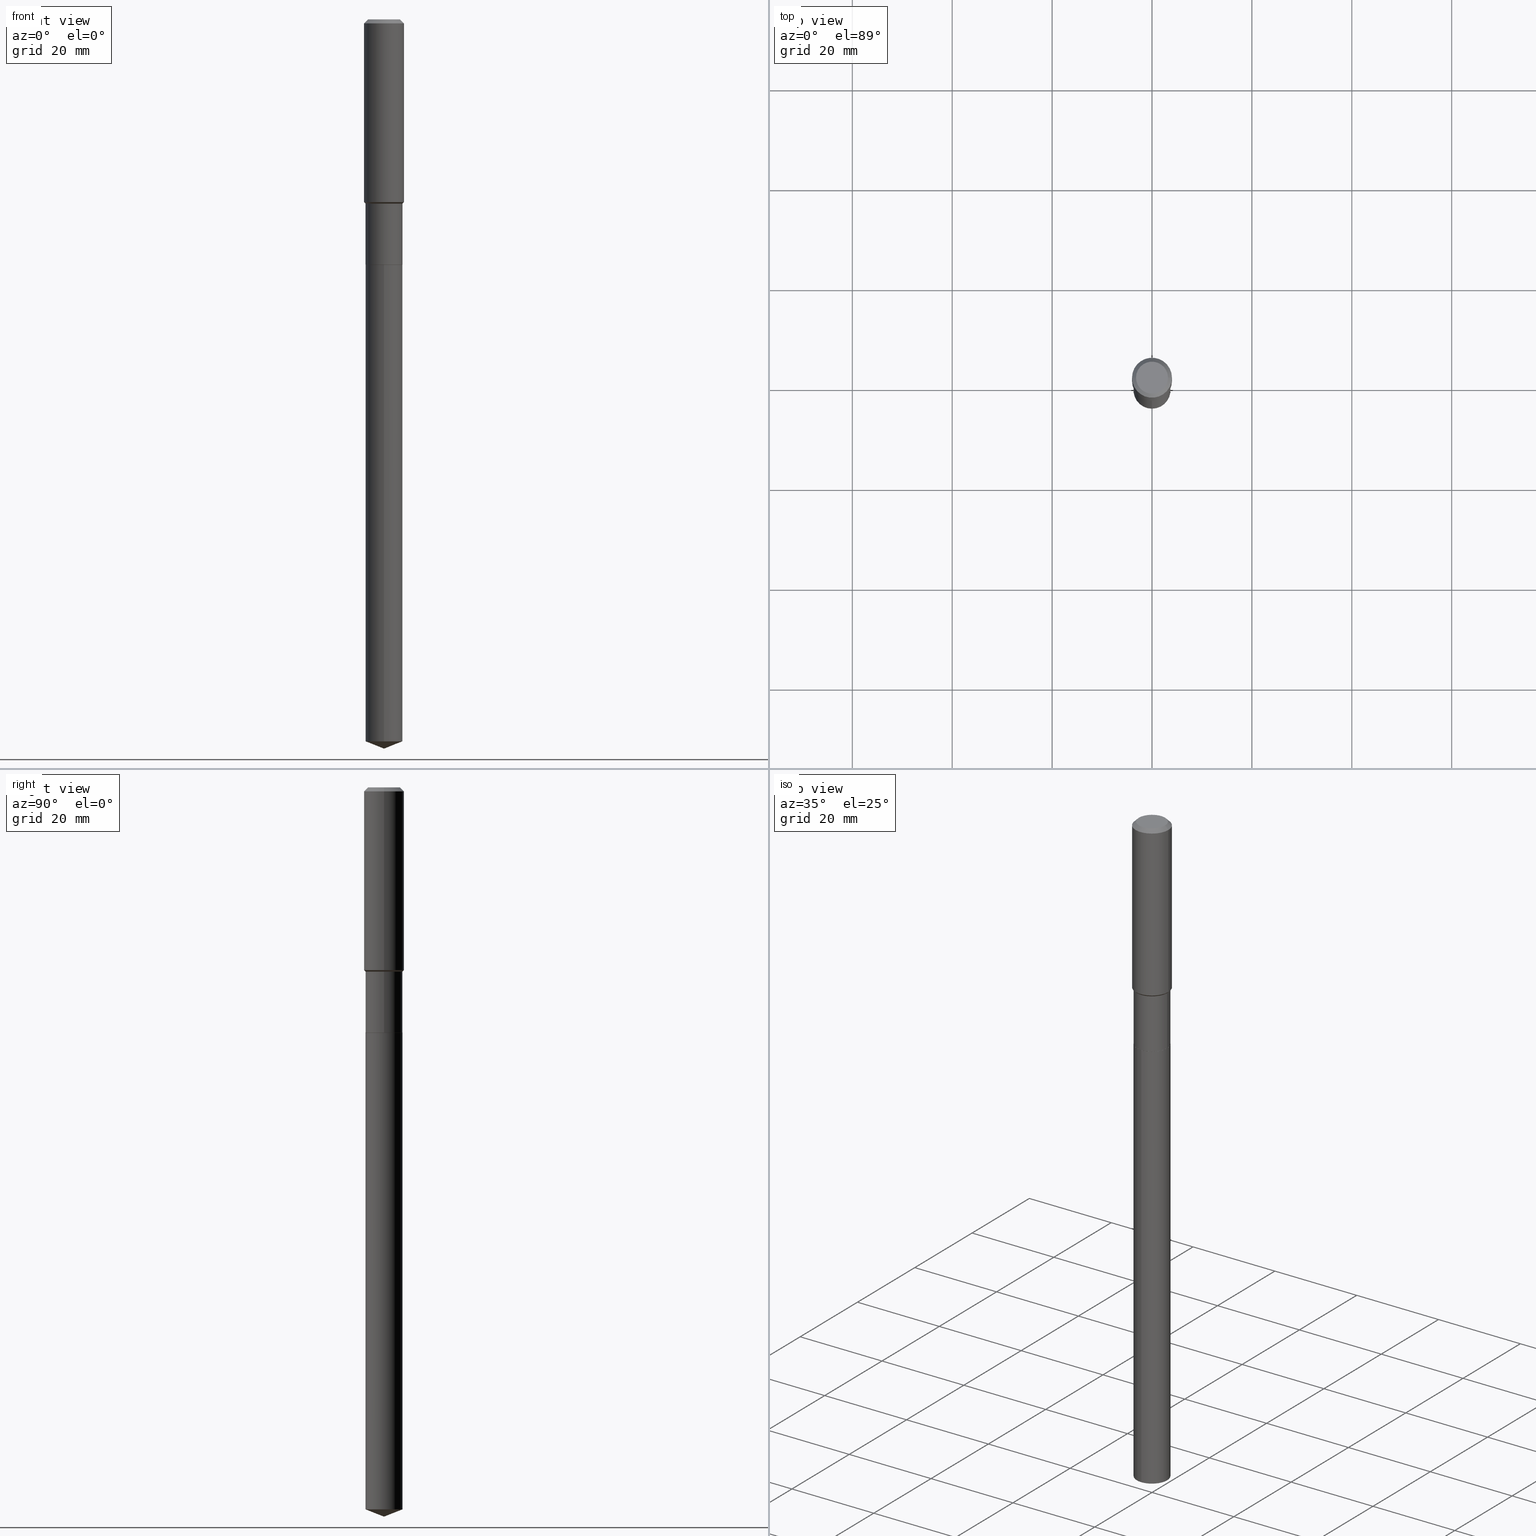
[diagram: canonical four-view strip — front | top / right | iso, engineering-drawing reading convention]
A machine part, canonical four-view strip (front | top / right | iso — engineering-drawing reading convention). The complete STEP part file that produces these views, byte-faithful:
ISO-10303-21;
HEADER;
FILE_DESCRIPTION (( 'STEP AP203' ),
    '1' );
FILE_NAME ('66753.STEP',
    '2024-04-25T05:20:40',
    ( '' ),
    ( '' ),
    'SwSTEP 2.0',
    'SolidWorks 2023',
    '' );
FILE_SCHEMA (( 'CONFIG_CONTROL_DESIGN' ));
ENDSEC;

DATA;
#1 = EDGE_CURVE ( 'NONE', #318, #283, #316, .T. ) ;
#2 = CARTESIAN_POINT ( 'NONE',  ( -0.1451500000000000012, -5.715031419853903591E-15, -1.932999999999999829 ) ) ;
#3 = ORIENTED_EDGE ( 'NONE', *, *, #90, .F. ) ;
#4 = DIRECTION ( 'NONE',  ( -2.445468806185136877E-29, 3.491481338843145188E-15, 1.000000000000000000 ) ) ;
#5 = AXIS2_PLACEMENT_3D ( 'NONE', #371, #373, #155 ) ;
#6 = DIRECTION ( 'NONE',  ( -2.438088387897960049E-29, 3.491481338843145188E-15, 1.000000000000000000 ) ) ;
#7 = EDGE_CURVE ( 'NONE', #409, #174, #345, .T. ) ;
#8 = APPLICATION_CONTEXT ( 'configuration controlled 3d designs of mechanical parts and assemblies' ) ;
#9 = PLANE ( 'NONE',  #307 ) ;
#10 = CARTESIAN_POINT ( 'NONE',  ( -1.017068514004865822E-15, -0.1456500000000199302, -5.690626939226684833 ) ) ;
#11 = CONICAL_SURFACE ( 'NONE', #284, 0.1451500000000000012, 0.7853981633975507526 ) ;
#12 = CLOSED_SHELL ( 'NONE', ( #227, #433, #67, #483, #308, #333, #13, #339, #326, #72, #265, #440 ) ) ;
#13 = ADVANCED_FACE ( 'NONE', ( #400 ), #119, .T. ) ;
#14 = PERSON_AND_ORGANIZATION ( #449, #479 ) ;
#15 = VERTEX_POINT ( 'NONE', #366 ) ;
#16 = DIRECTION ( 'NONE',  ( -2.445468806185136597E-29, 3.491481338843145583E-15, 1.000000000000000000 ) ) ;
#17 = PERSON_AND_ORGANIZATION_ROLE ( 'design_supplier' ) ;
#18 = FACE_OUTER_BOUND ( 'NONE', #352, .T. ) ;
#19 = CIRCLE ( 'NONE', #432, 0.1575000000000001676 ) ;
#20 = DIRECTION ( 'NONE',  ( -2.445505692520665496E-29, 3.491428515511228693E-15, 1.000000000000000000 ) ) ;
#21 = EDGE_LOOP ( 'NONE', ( #372, #447 ) ) ;
#22 = ADVANCED_FACE ( 'NONE', ( #176 ), #178, .T. ) ;
#23 = DIRECTION ( 'NONE',  ( -6.982962677686265922E-15, -1.000000000000000000, 3.751250248766581581E-15 ) ) ;
#24 = LINE ( 'NONE', #134, #223 ) ;
#25 = DIRECTION ( 'NONE',  ( -2.445468806185136597E-29, 3.491481338843145583E-15, 1.000000000000000000 ) ) ;
#26 = CARTESIAN_POINT ( 'NONE',  ( -0.1451500000000000012, -5.717680647028014003E-15, -1.932999999999999829 ) ) ;
#27 = DATE_AND_TIME ( #93, #343 ) ;
#28 =( NAMED_UNIT ( * ) PLANE_ANGLE_UNIT ( ) SI_UNIT ( $, .RADIAN. ) );
#29 = EDGE_CURVE ( 'NONE', #104, #142, #337, .T. ) ;
#30 = CARTESIAN_POINT ( 'NONE',  ( 0.1456500000000000017, -7.764356201319383773E-15, -1.932499999999999885 ) ) ;
#31 = DATE_AND_TIME ( #237, #112 ) ;
#32 = EDGE_LOOP ( 'NONE', ( #58, #123, #467, #208 ) ) ;
#33 = DIRECTION ( 'NONE',  ( 1.000000000000000000, -6.982962677686265922E-15, 0.000000000000000000 ) ) ;
#34 = PRODUCT ( '66753', '66753', '', ( #66 ) ) ;
#35 = CARTESIAN_POINT ( 'NONE',  ( -0.1456499999999999462, -4.874077523223553244E-15, -1.452299999999999702 ) ) ;
#36 = PRODUCT_DEFINITION_FORMATION_WITH_SPECIFIED_SOURCE ( 'ANY', '', #34, .NOT_KNOWN. ) ;
#37 = LINE ( 'NONE', #26, #443 ) ;
#38 = CC_DESIGN_PERSON_AND_ORGANIZATION_ASSIGNMENT ( #129, #17, ( #36 ) ) ;
#39 = AXIS2_PLACEMENT_3D ( 'NONE', #78, #428, #379 ) ;
#40 = DIRECTION ( 'NONE',  ( 1.000000000000000000, -6.982962677686265922E-15, 0.000000000000000000 ) ) ;
#41 = DIRECTION ( 'NONE',  ( -2.445468806185136597E-29, 3.491481338843145583E-15, 1.000000000000000000 ) ) ;
#42 = SHAPE_DEFINITION_REPRESENTATION ( #77, #234 ) ;
#43 = PRODUCT_DEFINITION ( 'UNKNOWN', '', #36, #310 ) ;
#44 = LINE ( 'NONE', #302, #295 ) ;
#45 = VECTOR ( 'NONE', #4, 39.37007874015748143 ) ;
#46 = CIRCLE ( 'NONE', #314, 0.1451500000000000012 ) ;
#47 = FACE_OUTER_BOUND ( 'NONE', #402, .T. ) ;
#48 = DIRECTION ( 'NONE',  ( 0.7071067811865451302, -7.319954787623248157E-15, -0.7071067811865499042 ) ) ;
#49 = LINE ( 'NONE', #275, #84 ) ;
#50 = EDGE_CURVE ( 'NONE', #272, #311, #37, .T. ) ;
#51 = AXIS2_PLACEMENT_3D ( 'NONE', #322, #320, #294 ) ;
#52 = EDGE_LOOP ( 'NONE', ( #257, #62, #109 ) ) ;
#53 = DIRECTION ( 'NONE',  ( -2.445468806185136597E-29, 3.491481338843145583E-15, 1.000000000000000000 ) ) ;
#54 = ORIENTED_EDGE ( 'NONE', *, *, #348, .F. ) ;
#55 = DIRECTION ( 'NONE',  ( -2.445468806185136597E-29, 3.491481338843145583E-15, 1.000000000000000000 ) ) ;
#56 = LINE ( 'NONE', #205, #95 ) ;
#57 = EDGE_CURVE ( 'NONE', #89, #142, #141, .T. ) ;
#58 = ORIENTED_EDGE ( 'NONE', *, *, #147, .F. ) ;
#59 = FACE_OUTER_BOUND ( 'NONE', #300, .T. ) ;
#60 = ORIENTED_EDGE ( 'NONE', *, *, #451, .F. ) ;
#61 = DATE_AND_TIME ( #395, #154 ) ;
#62 = ORIENTED_EDGE ( 'NONE', *, *, #87, .T. ) ;
#63 = ORIENTED_EDGE ( 'NONE', *, *, #201, .F. ) ;
#64 = PERSON_AND_ORGANIZATION ( #449, #479 ) ;
#65 = FACE_OUTER_BOUND ( 'NONE', #471, .T. ) ;
#66 = MECHANICAL_CONTEXT ( 'NONE', #185, 'mechanical' ) ;
#67 = ADVANCED_FACE ( 'NONE', ( #107 ), #323, .T. ) ;
#68 = DIRECTION ( 'NONE',  ( 1.000000000000000000, -6.982962677686267499E-15, 4.876176775795936353E-29 ) ) ;
#69 = CARTESIAN_POINT ( 'NONE',  ( -1.017068514004957330E-15, -0.1456500000000067463, -1.932999999999999385 ) ) ;
#70 =( NAMED_UNIT ( * ) SI_UNIT ( $, .STERADIAN. ) SOLID_ANGLE_UNIT ( ) );
#71 = DIRECTION ( 'NONE',  ( -1.000000000000000000, 6.982962677686265922E-15, -4.876176775795935793E-29 ) ) ;
#72 = ADVANCED_FACE ( 'NONE', ( #65 ), #103, .F. ) ;
#73 = EDGE_LOOP ( 'NONE', ( #356, #424, #397, #288 ) ) ;
#74 = MANIFOLD_SOLID_BREP ( 'Body-Move/Copy2[1]', #353 ) ;
#75 = CIRCLE ( 'NONE', #286, 0.1575000000000000011 ) ;
#76 = ORIENTED_EDGE ( 'NONE', *, *, #243, .F. ) ;
#77 = PRODUCT_DEFINITION_SHAPE ( 'NONE', 'NONE',  #43 ) ;
#78 = CARTESIAN_POINT ( 'NONE',  ( 7.703226739483228723E-31, -1.099816621735597661E-16, -0.03150000000000019451 ) ) ;
#79 = CARTESIAN_POINT ( 'NONE',  ( 0.1575000000000000844, -1.099816621735587677E-15, 7.679978421878603638E-30 ) ) ;
#80 = MANIFOLD_SOLID_BREP ( 'Body-Move/Copy2[2]', #12 ) ;
#81 = DIRECTION ( 'NONE',  ( 1.000000000000000000, -6.982962677686265922E-15, 0.000000000000000000 ) ) ;
#82 = EDGE_CURVE ( 'NONE', #311, #89, #125, .T. ) ;
#83 = DIRECTION ( 'NONE',  ( 1.000000000000000000, -6.982962677686267499E-15, 0.000000000000000000 ) ) ;
#84 = VECTOR ( 'NONE', #425, 39.37007874015748143 ) ;
#85 = CARTESIAN_POINT ( 'NONE',  ( 0.1456499999999999462, -6.087746862406903903E-15, -1.452299999999999702 ) ) ;
#86 = DIRECTION ( 'NONE',  ( 1.000000000000000000, -6.982962677686265922E-15, 4.876176775795935232E-29 ) ) ;
#87 = EDGE_CURVE ( 'NONE', #290, #174, #334, .T. ) ;
#88 = ORIENTED_EDGE ( 'NONE', *, *, #115, .F. ) ;
#89 = VERTEX_POINT ( 'NONE', #30 ) ;
#90 = EDGE_CURVE ( 'NONE', #174, #203, #360, .T. ) ;
#91 = LINE ( 'NONE', #240, #376 ) ;
#92 = ORIENTED_EDGE ( 'NONE', *, *, #195, .T. ) ;
#93 = CALENDAR_DATE ( 2024, 25, 4 ) ;
#94 = APPROVAL_PERSON_ORGANIZATION ( #189, #416, #250 ) ;
#95 = VECTOR ( 'NONE', #172, 39.37007874015748143 ) ;
#96 = VERTEX_POINT ( 'NONE', #152 ) ;
#97 = DIRECTION ( 'NONE',  ( 1.000000000000000000, 0.000000000000000000, 0.000000000000000000 ) ) ;
#98 = CARTESIAN_POINT ( 'NONE',  ( -9.439721640706201686E-47, 1.347742071746726764E-32, 3.860086710912459732E-18 ) ) ;
#99 = PRODUCT_RELATED_PRODUCT_CATEGORY ( 'detail', '', ( #34 ) ) ;
#100 = CARTESIAN_POINT ( 'NONE',  ( 4.727091202355868625E-29, -6.749033427983799432E-15, -1.932999999999999829 ) ) ;
#101 = CARTESIAN_POINT ( 'NONE',  ( 0.000000000000000000, 0.000000000000000000, 0.000000000000000000 ) ) ;
#102 = ORIENTED_EDGE ( 'NONE', *, *, #87, .F. ) ;
#103 = PLANE ( 'NONE',  #224 ) ;
#104 = VERTEX_POINT ( 'NONE', #35 ) ;
#105 = LENGTH_MEASURE_WITH_UNIT ( LENGTH_MEASURE( 0.02539999999999999897 ), #445 );
#106 = EDGE_CURVE ( 'NONE', #174, #409, #477, .T. ) ;
#107 = FACE_OUTER_BOUND ( 'NONE', #249, .T. ) ;
#108 = ORIENTED_EDGE ( 'NONE', *, *, #183, .T. ) ;
#109 = ORIENTED_EDGE ( 'NONE', *, *, #7, .F. ) ;
#110 = AXIS2_PLACEMENT_3D ( 'NONE', #338, #335, #157 ) ;
#111 = CARTESIAN_POINT ( 'NONE',  ( 0.1575000000000001676, -6.129120916272196299E-15, -1.440449999999999564 ) ) ;
#112 = LOCAL_TIME ( 1, 20, 40.00000000000000000, #158 ) ;
#113 = CARTESIAN_POINT ( 'NONE',  ( 3.551554347222673607E-29, -5.070678348401899637E-15, -1.452299999999999702 ) ) ;
#114 = APPROVAL_DATE_TIME ( #31, #365 ) ;
#115 = EDGE_CURVE ( 'NONE', #318, #446, #258, .T. ) ;
#116 = PLANE ( 'NONE',  #171 ) ;
#117 = CARTESIAN_POINT ( 'NONE',  ( 3.522575541869379032E-29, -5.029304294536608030E-15, -1.440449999999999564 ) ) ;
#118 = CC_DESIGN_APPROVAL ( #190, ( #336 ) ) ;
#119 = CONICAL_SURFACE ( 'NONE', #423, 0.1456499999999999462, 0.7853981633974554954 ) ;
#120 = AXIS2_PLACEMENT_3D ( 'NONE', #422, #53, #380 ) ;
#121 = CYLINDRICAL_SURFACE ( 'NONE', #381, 0.1456500000000000017 ) ;
#122 = FACE_OUTER_BOUND ( 'NONE', #319, .T. ) ;
#123 = ORIENTED_EDGE ( 'NONE', *, *, #82, .T. ) ;
#124 = CC_DESIGN_SECURITY_CLASSIFICATION ( #336, ( #36 ) ) ;
#125 = CIRCLE ( 'NONE', #198, 0.1456500000000000017 ) ;
#126 = DIRECTION ( 'NONE',  ( -2.445505692520665496E-29, 3.491428515511228693E-15, 1.000000000000000000 ) ) ;
#127 = ORIENTED_EDGE ( 'NONE', *, *, #209, .F. ) ;
#128 = ORIENTED_EDGE ( 'NONE', *, *, #50, .F. ) ;
#129 = PERSON_AND_ORGANIZATION ( #449, #479 ) ;
#130 = CARTESIAN_POINT ( 'NONE',  ( 3.522575541869379032E-29, -5.029304294536608030E-15, -1.440449999999999564 ) ) ;
#131 = ORIENTED_EDGE ( 'NONE', *, *, #315, .F. ) ;
#132 = PERSON_AND_ORGANIZATION ( #449, #479 ) ;
#133 = DIRECTION ( 'NONE',  ( 0.000000000000000000, 0.000000000000000000, 1.000000000000000000 ) ) ;
#134 = CARTESIAN_POINT ( 'NONE',  ( 1.034905494634633067E-15, 0.1456499999999932571, -1.933000000000000496 ) ) ;
#135 = ORIENTED_EDGE ( 'NONE', *, *, #358, .T. ) ;
#136 = CIRCLE ( 'NONE', #110, 0.1456500000000000017 ) ;
#137 = APPROVAL_DATE_TIME ( #27, #416 ) ;
#138 = APPLICATION_PROTOCOL_DEFINITION ( 'international standard', 'config_control_design', 1994, #185 ) ;
#139 = EDGE_CURVE ( 'NONE', #283, #355, #259, .T. ) ;
#140 = CIRCLE ( 'NONE', #199, 0.1575000000000001676 ) ;
#141 = LINE ( 'NONE', #327, #410 ) ;
#142 = VERTEX_POINT ( 'NONE', #85 ) ;
#143 = PERSON_AND_ORGANIZATION ( #449, #479 ) ;
#144 = CYLINDRICAL_SURFACE ( 'NONE', #179, 0.1456500000000000017 ) ;
#145 = DIRECTION ( 'NONE',  ( -2.445505692520665496E-29, 3.491428515511228693E-15, 1.000000000000000000 ) ) ;
#146 = ORIENTED_EDGE ( 'NONE', *, *, #139, .T. ) ;
#147 = EDGE_CURVE ( 'NONE', #311, #104, #377, .T. ) ;
#148 = DIRECTION ( 'NONE',  ( -2.445468806185136597E-29, 3.491481338843145583E-15, 1.000000000000000000 ) ) ;
#149 = CARTESIAN_POINT ( 'NONE',  ( 3.551554347222673607E-29, -5.070678348401899637E-15, -1.452299999999999702 ) ) ;
#150 = AXIS2_PLACEMENT_3D ( 'NONE', #164, #468, #86 ) ;
#151 = PERSON_AND_ORGANIZATION_ROLE ( 'creator' ) ;
#152 = CARTESIAN_POINT ( 'NONE',  ( -0.1575000000000001676, -3.910199485714448849E-15, -1.440449999999999564 ) ) ;
#153 = DIRECTION ( 'NONE',  ( -2.445468806185136597E-29, 3.491481338843145583E-15, 1.000000000000000000 ) ) ;
#154 = LOCAL_TIME ( 1, 20, 40.00000000000000000, #246 ) ;
#155 = DIRECTION ( 'NONE',  ( 1.000000000000000000, -6.982962677686265922E-15, 0.000000000000000000 ) ) ;
#156 = EDGE_CURVE ( 'NONE', #142, #104, #324, .T. ) ;
#157 = DIRECTION ( 'NONE',  ( -6.982962677686265922E-15, -1.000000000000000000, 3.751250248766581581E-15 ) ) ;
#158 = COORDINATED_UNIVERSAL_TIME_OFFSET ( 5, 0, .BEHIND. ) ;
#159 = CARTESIAN_POINT ( 'NONE',  ( 0.1260000000000000009, -1.027466422270894443E-15, 3.860086710919128072E-18 ) ) ;
#160 = EDGE_CURVE ( 'NONE', #283, #318, #238, .T. ) ;
#161 = CARTESIAN_POINT ( 'NONE',  ( -1.017068514004957330E-15, -0.1456500000000067463, -1.932999999999999385 ) ) ;
#162 = CIRCLE ( 'NONE', #417, 0.1456500000000000017 ) ;
#163 = ORIENTED_EDGE ( 'NONE', *, *, #160, .F. ) ;
#164 = CARTESIAN_POINT ( 'NONE',  ( 0.000000000000000000, 0.000000000000000000, 0.000000000000000000 ) ) ;
#165 = ORIENTED_EDGE ( 'NONE', *, *, #115, .T. ) ;
#166 = DIRECTION ( 'NONE',  ( 1.000000000000000000, -6.982962677686265922E-15, 0.000000000000000000 ) ) ;
#167 = CARTESIAN_POINT ( 'NONE',  ( 0.000000000000000000, 0.000000000000000000, 0.000000000000000000 ) ) ;
#168 = ORIENTED_EDGE ( 'NONE', *, *, #298, .F. ) ;
#169 = EDGE_CURVE ( 'NONE', #446, #355, #453, .T. ) ;
#170 = PERSON_AND_ORGANIZATION_ROLE ( 'classification_officer' ) ;
#171 = AXIS2_PLACEMENT_3D ( 'NONE', #225, #263, #192 ) ;
#172 = DIRECTION ( 'NONE',  ( 0.7071067811866199593, -2.468850131083015945E-15, 0.7071067811864750752 ) ) ;
#173 = DIRECTION ( 'NONE',  ( -1.000000000000000000, 6.982962677686265922E-15, 0.000000000000000000 ) ) ;
#174 = VERTEX_POINT ( 'NONE', #10 ) ;
#175 = CC_DESIGN_PERSON_AND_ORGANIZATION_ASSIGNMENT ( #143, #170, ( #336 ) ) ;
#176 = FACE_OUTER_BOUND ( 'NONE', #52, .T. ) ;
#177 = ORIENTED_EDGE ( 'NONE', *, *, #1, .T. ) ;
#178 = CONICAL_SURFACE ( 'NONE', #369, 99.94676754584057221, 1.195550537616121511 ) ;
#179 = AXIS2_PLACEMENT_3D ( 'NONE', #100, #484, #23 ) ;
#180 = ORIENTED_EDGE ( 'NONE', *, *, #388, .F. ) ;
#181 = PERSON_AND_ORGANIZATION_ROLE ( 'creator' ) ;
#182 = DIRECTION ( 'NONE',  ( -6.982962677686265922E-15, -1.000000000000000000, 3.498627837349983318E-15 ) ) ;
#183 = EDGE_CURVE ( 'NONE', #290, #409, #44, .T. ) ;
#184 = CARTESIAN_POINT ( 'NONE',  ( 1.391638927260372987E-28, -1.986851927425302503E-14, -5.690626939226684833 ) ) ;
#185 = APPLICATION_CONTEXT ( 'configuration controlled 3d designs of mechanical parts and assemblies' ) ;
#186 = DIRECTION ( 'NONE',  ( 1.000000000000000000, -6.982962677686269866E-15, 0.000000000000000000 ) ) ;
#187 = VECTOR ( 'NONE', #196, 39.37007874015748143 ) ;
#188 = FACE_OUTER_BOUND ( 'NONE', #21, .T. ) ;
#189 = PERSON_AND_ORGANIZATION ( #449, #479 ) ;
#190 = APPROVAL ( #281, 'UNSPECIFIED' ) ;
#191 = DIRECTION ( 'NONE',  ( -2.445468806185136597E-29, 3.491481338843145583E-15, 1.000000000000000000 ) ) ;
#192 = DIRECTION ( 'NONE',  ( 6.982962677686265922E-15, 1.000000000000000000, -3.491428515511228299E-15 ) ) ;
#193 = VECTOR ( 'NONE', #48, 39.37007874015748143 ) ;
#194 = DIRECTION ( 'NONE',  ( -6.982962677686265922E-15, -1.000000000000000000, 3.751250248766581581E-15 ) ) ;
#195 = EDGE_CURVE ( 'NONE', #272, #394, #46, .T. ) ;
#196 = DIRECTION ( 'NONE',  ( 0.7071067811865526798, -2.468850131082310309E-15, 0.7071067811865424657 ) ) ;
#197 = CONICAL_SURFACE ( 'NONE', #475, 0.1575000000000000011, 0.7853981633974449483 ) ;
#198 = AXIS2_PLACEMENT_3D ( 'NONE', #357, #214, #186 ) ;
#199 = AXIS2_PLACEMENT_3D ( 'NONE', #130, #279, #328 ) ;
#200 = ORIENTED_EDGE ( 'NONE', *, *, #1, .F. ) ;
#201 = EDGE_CURVE ( 'NONE', #96, #280, #19, .T. ) ;
#202 = DIRECTION ( 'NONE',  ( -2.445505692520665216E-29, 3.491428515511228299E-15, 1.000000000000000000 ) ) ;
#203 = VERTEX_POINT ( 'NONE', #161 ) ;
#204 = DIRECTION ( 'NONE',  ( 1.000000000000000000, -6.982962677686265922E-15, 0.000000000000000000 ) ) ;
#205 = CARTESIAN_POINT ( 'NONE',  ( 0.1451500000000000012, -7.762610460649961480E-15, -1.932999999999999829 ) ) ;
#206 = ORIENTED_EDGE ( 'NONE', *, *, #57, .F. ) ;
#207 = CYLINDRICAL_SURFACE ( 'NONE', #261, 0.1575000000000000844 ) ;
#208 = ORIENTED_EDGE ( 'NONE', *, *, #29, .F. ) ;
#209 = EDGE_CURVE ( 'NONE', #142, #280, #264, .T. ) ;
#210 = APPROVAL_DATE_TIME ( #61, #190 ) ;
#211 = ORIENTED_EDGE ( 'NONE', *, *, #209, .T. ) ;
#212 = ORIENTED_EDGE ( 'NONE', *, *, #29, .T. ) ;
#213 = APPROVAL_STATUS ( 'not_yet_approved' ) ;
#214 = DIRECTION ( 'NONE',  ( -2.445468806185136597E-29, 3.491481338843145583E-15, 1.000000000000000000 ) ) ;
#215 =( CONVERSION_BASED_UNIT ( 'INCH', #105 ) LENGTH_UNIT ( ) NAMED_UNIT ( #406 ) );
#216 = VECTOR ( 'NONE', #448, 39.37007874015748143 ) ;
#217 = ORIENTED_EDGE ( 'NONE', *, *, #404, .F. ) ;
#218 = ORIENTED_EDGE ( 'NONE', *, *, #404, .T. ) ;
#219 = FACE_OUTER_BOUND ( 'NONE', #390, .T. ) ;
#220 = DIRECTION ( 'NONE',  ( -2.445505692520665216E-29, 3.491428515511228299E-15, 1.000000000000000000 ) ) ;
#221 = ORIENTED_EDGE ( 'NONE', *, *, #82, .F. ) ;
#222 = DATE_TIME_ROLE ( 'creation_date' ) ;
#223 = VECTOR ( 'NONE', #202, 39.37007874015748143 ) ;
#224 = AXIS2_PLACEMENT_3D ( 'NONE', #256, #362, #71 ) ;
#225 = CARTESIAN_POINT ( 'NONE',  ( 4.727091202355868625E-29, -6.749033427983799432E-15, -1.932999999999999829 ) ) ;
#226 = AXIS2_PLACEMENT_3D ( 'NONE', #472, #133, #97 ) ;
#227 = ADVANCED_FACE ( 'NONE', ( #414 ), #444, .T. ) ;
#228 = FACE_OUTER_BOUND ( 'NONE', #241, .T. ) ;
#229 = CARTESIAN_POINT ( 'NONE',  ( -9.439721640706201686E-47, 1.347742071746726764E-32, 3.860086710912459732E-18 ) ) ;
#230 = ADVANCED_FACE ( 'NONE', ( #188 ), #116, .F. ) ;
#231 = DIRECTION ( 'NONE',  ( -2.445468806185136597E-29, 3.491481338843145583E-15, 1.000000000000000000 ) ) ;
#232 = AXIS2_PLACEMENT_3D ( 'NONE', #101, #441, #68 ) ;
#233 = VECTOR ( 'NONE', #412, 39.37007874015748143 ) ;
#234 = ADVANCED_BREP_SHAPE_REPRESENTATION ( '66753', ( #74, #80, #226 ), #368 ) ;
#235 = DIRECTION ( 'NONE',  ( 6.611014441532073689E-15, 0.9304175679820279043, 0.3665012267242886423 ) ) ;
#236 = CARTESIAN_POINT ( 'NONE',  ( 7.703226739483228723E-31, -1.099816621735597661E-16, -0.03150000000000019451 ) ) ;
#237 = CALENDAR_DATE ( 2024, 25, 4 ) ;
#238 = CIRCLE ( 'NONE', #383, 0.1260000000000000009 ) ;
#239 = EDGE_LOOP ( 'NONE', ( #128, #92, #244, #221 ) ) ;
#240 = CARTESIAN_POINT ( 'NONE',  ( -0.1575000000000000844, 1.119104808822158392E-15, -7.747322767151481189E-30 ) ) ;
#241 = EDGE_LOOP ( 'NONE', ( #247, #436, #276, #206 ) ) ;
#242 = DIRECTION ( 'NONE',  ( 2.445468806185136597E-29, -3.491481338843145583E-15, -1.000000000000000000 ) ) ;
#243 = EDGE_CURVE ( 'NONE', #15, #203, #136, .T. ) ;
#244 = ORIENTED_EDGE ( 'NONE', *, *, #374, .T. ) ;
#245 = CONICAL_SURFACE ( 'NONE', #39, 0.1575000000000000011, 0.7853981633974449483 ) ;
#246 = COORDINATED_UNIVERSAL_TIME_OFFSET ( 5, 0, .BEHIND. ) ;
#247 = ORIENTED_EDGE ( 'NONE', *, *, #291, .T. ) ;
#248 = DIRECTION ( 'NONE',  ( -2.445468806185136597E-29, 3.491481338843145583E-15, 1.000000000000000000 ) ) ;
#249 = EDGE_LOOP ( 'NONE', ( #218, #135, #434, #168 ) ) ;
#250 = APPROVAL_ROLE ( '' ) ;
#251 = DIRECTION ( 'NONE',  ( 1.000000000000000000, -6.982962677686265922E-15, 4.876281427513067258E-29 ) ) ;
#252 = DATE_AND_TIME ( #292, #486 ) ;
#253 = PERSON_AND_ORGANIZATION ( #449, #479 ) ;
#254 = CC_DESIGN_PERSON_AND_ORGANIZATION_ASSIGNMENT ( #253, #363, ( #34 ) ) ;
#255 = AXIS2_PLACEMENT_3D ( 'NONE', #113, #41, #418 ) ;
#256 = CARTESIAN_POINT ( 'NONE',  ( -4.719860820353100843E-47, 6.738710358733633822E-33, 1.930043355456229866E-18 ) ) ;
#257 = ORIENTED_EDGE ( 'NONE', *, *, #183, .F. ) ;
#258 = LINE ( 'NONE', #299, #216 ) ;
#259 = LINE ( 'NONE', #304, #193 ) ;
#260 = CC_DESIGN_DATE_AND_TIME_ASSIGNMENT ( #438, #222, ( #43 ) ) ;
#261 = AXIS2_PLACEMENT_3D ( 'NONE', #167, #321, #382 ) ;
#262 = AXIS2_PLACEMENT_3D ( 'NONE', #184, #485, #297 ) ;
#263 = DIRECTION ( 'NONE',  ( 2.445505692520665216E-29, -3.491428515511228299E-15, -1.000000000000000000 ) ) ;
#264 = LINE ( 'NONE', #419, #187 ) ;
#265 = ADVANCED_FACE ( 'NONE', ( #341 ), #9, .F. ) ;
#266 = COORDINATED_UNIVERSAL_TIME_OFFSET ( 5, 0, .BEHIND. ) ;
#267 = CARTESIAN_POINT ( 'NONE',  ( 4.727091202355868625E-29, -6.749033427983799432E-15, -1.932999999999999829 ) ) ;
#268 = DIRECTION ( 'NONE',  ( 1.000000000000000000, -6.982962677686265922E-15, 4.876281427513067258E-29 ) ) ;
#269 = CIRCLE ( 'NONE', #296, 0.1451500000000000012 ) ;
#270 = CARTESIAN_POINT ( 'NONE',  ( 4.725868467952776384E-29, -6.747287687314378717E-15, -1.932499999999999885 ) ) ;
#271 = CARTESIAN_POINT ( 'NONE',  ( -0.1260000000000000009, 9.348441284752484904E-16, 3.860086710906114178E-18 ) ) ;
#272 = VERTEX_POINT ( 'NONE', #2 ) ;
#273 = CC_DESIGN_PERSON_AND_ORGANIZATION_ASSIGNMENT ( #14, #151, ( #43 ) ) ;
#274 = CARTESIAN_POINT ( 'NONE',  ( -0.1575000000000000011, -1.450538169532925352E-15, -0.03150000000000019451 ) ) ;
#275 = CARTESIAN_POINT ( 'NONE',  ( -0.1456499999999999462, -4.035772853767314098E-15, -1.452299999999999702 ) ) ;
#276 = ORIENTED_EDGE ( 'NONE', *, *, #156, .F. ) ;
#277 = COORDINATED_UNIVERSAL_TIME_OFFSET ( 5, 0, .BEHIND. ) ;
#278 = ADVANCED_FACE ( 'NONE', ( #47 ), #121, .T. ) ;
#279 = DIRECTION ( 'NONE',  ( -2.445468806185136597E-29, 3.491481338843145583E-15, 1.000000000000000000 ) ) ;
#280 = VERTEX_POINT ( 'NONE', #111 ) ;
#281 = APPROVAL_STATUS ( 'not_yet_approved' ) ;
#282 = CARTESIAN_POINT ( 'NONE',  ( -8.222305625471975062E-28, 1.173889823566491010E-13, 33.62207874015748388 ) ) ;
#283 = VERTEX_POINT ( 'NONE', #159 ) ;
#284 = AXIS2_PLACEMENT_3D ( 'NONE', #347, #16, #166 ) ;
#285 = ORIENTED_EDGE ( 'NONE', *, *, #169, .T. ) ;
#286 = AXIS2_PLACEMENT_3D ( 'NONE', #396, #148, #33 ) ;
#287 = ORIENTED_EDGE ( 'NONE', *, *, #195, .F. ) ;
#288 = ORIENTED_EDGE ( 'NONE', *, *, #374, .F. ) ;
#289 = APPROVAL_ROLE ( '' ) ;
#290 = VERTEX_POINT ( 'NONE', #461 ) ;
#291 = EDGE_CURVE ( 'NONE', #89, #311, #460, .T. ) ;
#292 = CALENDAR_DATE ( 2024, 25, 4 ) ;
#293 = DIRECTION ( 'NONE',  ( -0.7071067811866199593, 7.493145998870616062E-15, 0.7071067811864750752 ) ) ;
#294 = DIRECTION ( 'NONE',  ( 1.000000000000000000, -6.982962677686265922E-15, 0.000000000000000000 ) ) ;
#295 = VECTOR ( 'NONE', #235, 39.37007874015748143 ) ;
#296 = AXIS2_PLACEMENT_3D ( 'NONE', #387, #55, #204 ) ;
#297 = DIRECTION ( 'NONE',  ( -6.982962677686265922E-15, -1.000000000000000000, 0.000000000000000000 ) ) ;
#298 = EDGE_CURVE ( 'NONE', #280, #355, #450, .T. ) ;
#299 = CARTESIAN_POINT ( 'NONE',  ( -0.1575000000000000011, 9.898349595620272334E-16, -0.03150000000000019451 ) ) ;
#300 = EDGE_LOOP ( 'NONE', ( #367, #487, #332, #469 ) ) ;
#301 = DIRECTION ( 'NONE',  ( 1.000000000000000000, -6.982962677686269866E-15, 0.000000000000000000 ) ) ;
#302 = CARTESIAN_POINT ( 'NONE',  ( 1.405676797106502251E-28, -2.006873110715854157E-14, -5.748000000000000220 ) ) ;
#303 = CARTESIAN_POINT ( 'NONE',  ( 4.727091202355868625E-29, -6.749033427983799432E-15, -1.932999999999999829 ) ) ;
#304 = CARTESIAN_POINT ( 'NONE',  ( 0.1575000000000000011, -1.190510096822576026E-15, -0.03150000000000019451 ) ) ;
#305 = COORDINATED_UNIVERSAL_TIME_OFFSET ( 5, 0, .BEHIND. ) ;
#306 = AXIS2_PLACEMENT_3D ( 'NONE', #270, #153, #301 ) ;
#307 = AXIS2_PLACEMENT_3D ( 'NONE', #458, #6, #456 ) ;
#308 = ADVANCED_FACE ( 'NONE', ( #228 ), #385, .T. ) ;
#309 = DIRECTION ( 'NONE',  ( -6.982962677686265922E-15, -1.000000000000000000, 3.498627837349983318E-15 ) ) ;
#310 = DESIGN_CONTEXT ( 'detailed design', #8, 'design' ) ;
#311 = VERTEX_POINT ( 'NONE', #391 ) ;
#312 = FACE_OUTER_BOUND ( 'NONE', #32, .T. ) ;
#313 = ORIENTED_EDGE ( 'NONE', *, *, #7, .T. ) ;
#314 = AXIS2_PLACEMENT_3D ( 'NONE', #455, #191, #81 ) ;
#315 = EDGE_CURVE ( 'NONE', #409, #15, #24, .T. ) ;
#316 = CIRCLE ( 'NONE', #459, 0.1260000000000000009 ) ;
#317 = DIRECTION ( 'NONE',  ( -6.982962677686265922E-15, -1.000000000000000000, 3.751250248766581581E-15 ) ) ;
#318 = VERTEX_POINT ( 'NONE', #271 ) ;
#319 = EDGE_LOOP ( 'NONE', ( #330, #200, #165, #285 ) ) ;
#320 = DIRECTION ( 'NONE',  ( -2.445468806185136597E-29, 3.491481338843145583E-15, 1.000000000000000000 ) ) ;
#321 = DIRECTION ( 'NONE',  ( -2.445468806185136597E-29, 3.491481338843145583E-15, 1.000000000000000000 ) ) ;
#322 = CARTESIAN_POINT ( 'NONE',  ( 3.551554347222673607E-29, -5.070678348401899637E-15, -1.452299999999999702 ) ) ;
#323 = CYLINDRICAL_SURFACE ( 'NONE', #232, 0.1575000000000000844 ) ;
#324 = CIRCLE ( 'NONE', #255, 0.1456499999999999462 ) ;
#325 = APPROVAL_PERSON_ORGANIZATION ( #64, #365, #289 ) ;
#326 = ADVANCED_FACE ( 'NONE', ( #122 ), #197, .T. ) ;
#327 = CARTESIAN_POINT ( 'NONE',  ( 0.1456500000000000017, -1.017068514005004661E-15, 7.102151473946780073E-30 ) ) ;
#328 = DIRECTION ( 'NONE',  ( 1.000000000000000000, -6.982962677686267499E-15, 0.000000000000000000 ) ) ;
#329 = CARTESIAN_POINT ( 'NONE',  ( 1.391638927260372987E-28, -1.986851927425302503E-14, -5.690626939226684833 ) ) ;
#330 = ORIENTED_EDGE ( 'NONE', *, *, #139, .F. ) ;
#331 = ORIENTED_EDGE ( 'NONE', *, *, #348, .T. ) ;
#332 = ORIENTED_EDGE ( 'NONE', *, *, #298, .T. ) ;
#333 = ADVANCED_FACE ( 'NONE', ( #312 ), #464, .T. ) ;
#334 = LINE ( 'NONE', #405, #403 ) ;
#335 = DIRECTION ( 'NONE',  ( -2.445505692520665496E-29, 3.491428515511228693E-15, 1.000000000000000000 ) ) ;
#336 = SECURITY_CLASSIFICATION ( '', '', #481 ) ;
#337 = CIRCLE ( 'NONE', #435, 0.1456499999999999462 ) ;
#338 = CARTESIAN_POINT ( 'NONE',  ( 4.727091202355868625E-29, -6.749033427983799432E-15, -1.932999999999999829 ) ) ;
#339 = ADVANCED_FACE ( 'NONE', ( #59 ), #207, .T. ) ;
#340 = CARTESIAN_POINT ( 'NONE',  ( -0.1456500000000000017, 1.034905494634585933E-15, -7.164428958956269648E-30 ) ) ;
#341 = FACE_OUTER_BOUND ( 'NONE', #346, .T. ) ;
#342 = ADVANCED_FACE ( 'NONE', ( #474 ), #354, .T. ) ;
#343 = LOCAL_TIME ( 1, 20, 40.00000000000000000, #266 ) ;
#344 = CARTESIAN_POINT ( 'NONE',  ( 0.1575000000000000011, -1.209798283909146741E-15, -0.03150000000000019451 ) ) ;
#345 = CIRCLE ( 'NONE', #488, 0.1456500000000000017 ) ;
#346 = EDGE_LOOP ( 'NONE', ( #60, #287 ) ) ;
#347 = CARTESIAN_POINT ( 'NONE',  ( 4.727091202355868625E-29, -6.749033427983799432E-15, -1.932999999999999829 ) ) ;
#348 = EDGE_CURVE ( 'NONE', #104, #96, #49, .T. ) ;
#349 = EDGE_LOOP ( 'NONE', ( #54, #212, #211, #63 ) ) ;
#350 = ORIENTED_EDGE ( 'NONE', *, *, #466, .T. ) ;
#351 = CARTESIAN_POINT ( 'NONE',  ( 4.727091202355868625E-29, -6.749033427983799432E-15, -1.932999999999999829 ) ) ;
#352 = EDGE_LOOP ( 'NONE', ( #465, #442, #180, #3 ) ) ;
#353 = CLOSED_SHELL ( 'NONE', ( #457, #342, #22, #278, #230 ) ) ;
#354 = CONICAL_SURFACE ( 'NONE', #489, 99.94676754584057221, 1.195550537616121511 ) ;
#355 = VERTEX_POINT ( 'NONE', #344 ) ;
#356 = ORIENTED_EDGE ( 'NONE', *, *, #451, .T. ) ;
#357 = CARTESIAN_POINT ( 'NONE',  ( 4.725868467952776384E-29, -6.747287687314378717E-15, -1.932499999999999885 ) ) ;
#358 = EDGE_CURVE ( 'NONE', #96, #446, #91, .T. ) ;
#359 = FACE_OUTER_BOUND ( 'NONE', #462, .T. ) ;
#360 = LINE ( 'NONE', #69, #393 ) ;
#361 = APPROVAL_PERSON_ORGANIZATION ( #427, #190, #430 ) ;
#362 = DIRECTION ( 'NONE',  ( 2.438088387897960049E-29, -3.491481338843145188E-15, -1.000000000000000000 ) ) ;
#363 = PERSON_AND_ORGANIZATION_ROLE ( 'design_owner' ) ;
#364 = CARTESIAN_POINT ( 'NONE',  ( 1.034905494634725561E-15, 0.1456499999999801842, -5.690626939226684833 ) ) ;
#365 = APPROVAL ( #213, 'UNSPECIFIED' ) ;
#366 = CARTESIAN_POINT ( 'NONE',  ( 1.034905494634725758E-15, 0.1456499999999932848, -1.933000000000000496 ) ) ;
#367 = ORIENTED_EDGE ( 'NONE', *, *, #358, .F. ) ;
#368 =( GEOMETRIC_REPRESENTATION_CONTEXT ( 3 ) GLOBAL_UNCERTAINTY_ASSIGNED_CONTEXT ( ( #478 ) ) GLOBAL_UNIT_ASSIGNED_CONTEXT ( ( #215, #28, #70 ) ) REPRESENTATION_CONTEXT ( 'NONE', 'WORKASPACE' ) );
#369 = AXIS2_PLACEMENT_3D ( 'NONE', #476, #145, #182 ) ;
#370 = CONICAL_SURFACE ( 'NONE', #51, 0.1456499999999999462, 0.7853981633974554954 ) ;
#371 = CARTESIAN_POINT ( 'NONE',  ( 7.703226739483228723E-31, -1.099816621735597661E-16, -0.03150000000000019451 ) ) ;
#372 = ORIENTED_EDGE ( 'NONE', *, *, #388, .T. ) ;
#373 = DIRECTION ( 'NONE',  ( -2.445468806185136597E-29, 3.491481338843145583E-15, 1.000000000000000000 ) ) ;
#374 = EDGE_CURVE ( 'NONE', #394, #89, #56, .T. ) ;
#375 = DIRECTION ( 'NONE',  ( -2.445468806185136597E-29, 3.491481338843145583E-15, 1.000000000000000000 ) ) ;
#376 = VECTOR ( 'NONE', #389, 39.37007874015748143 ) ;
#377 = LINE ( 'NONE', #340, #45 ) ;
#378 = DIRECTION ( 'NONE',  ( -2.445468806185136597E-29, 3.491481338843145583E-15, 1.000000000000000000 ) ) ;
#379 = DIRECTION ( 'NONE',  ( -1.000000000000000000, 6.982962677686265922E-15, 0.000000000000000000 ) ) ;
#380 = DIRECTION ( 'NONE',  ( 1.000000000000000000, -6.982962677686265922E-15, 4.876176775795935232E-29 ) ) ;
#381 = AXIS2_PLACEMENT_3D ( 'NONE', #267, #415, #194 ) ;
#382 = DIRECTION ( 'NONE',  ( 1.000000000000000000, -6.982962677686267499E-15, 4.876176775795936353E-29 ) ) ;
#383 = AXIS2_PLACEMENT_3D ( 'NONE', #229, #231, #268 ) ;
#384 = CC_DESIGN_APPROVAL ( #365, ( #43 ) ) ;
#385 = CYLINDRICAL_SURFACE ( 'NONE', #150, 0.1456500000000000017 ) ;
#386 = ORIENTED_EDGE ( 'NONE', *, *, #156, .T. ) ;
#387 = CARTESIAN_POINT ( 'NONE',  ( 4.727091202355868625E-29, -6.749033427983799432E-15, -1.932999999999999829 ) ) ;
#388 = EDGE_CURVE ( 'NONE', #203, #15, #162, .T. ) ;
#389 = DIRECTION ( 'NONE',  ( -2.445468806185136877E-29, 3.491481338843145188E-15, 1.000000000000000000 ) ) ;
#390 = EDGE_LOOP ( 'NONE', ( #386, #331, #217, #127 ) ) ;
#391 = CARTESIAN_POINT ( 'NONE',  ( -0.1456500000000000294, -4.874077523223552455E-15, -1.932499999999999885 ) ) ;
#392 = APPROVAL_STATUS ( 'not_yet_approved' ) ;
#393 = VECTOR ( 'NONE', #220, 39.37007874015748143 ) ;
#394 = VERTEX_POINT ( 'NONE', #470 ) ;
#395 = CALENDAR_DATE ( 2024, 25, 4 ) ;
#396 = CARTESIAN_POINT ( 'NONE',  ( 7.703226739483228723E-31, -1.099816621735597661E-16, -0.03150000000000019451 ) ) ;
#397 = ORIENTED_EDGE ( 'NONE', *, *, #291, .F. ) ;
#398 = CC_DESIGN_PERSON_AND_ORGANIZATION_ASSIGNMENT ( #132, #181, ( #36 ) ) ;
#399 = APPLICATION_PROTOCOL_DEFINITION ( 'international standard', 'config_control_design', 1994, #8 ) ;
#400 = FACE_OUTER_BOUND ( 'NONE', #349, .T. ) ;
#401 = DIRECTION ( 'NONE',  ( 1.000000000000000000, -6.982962677686265922E-15, 0.000000000000000000 ) ) ;
#402 = EDGE_LOOP ( 'NONE', ( #131, #313, #421, #76 ) ) ;
#403 = VECTOR ( 'NONE', #408, 39.37007874015748854 ) ;
#404 = EDGE_CURVE ( 'NONE', #280, #96, #140, .T. ) ;
#405 = CARTESIAN_POINT ( 'NONE',  ( 1.405662411803562861E-28, -2.006893532215973621E-14, -5.748000000000000220 ) ) ;
#406 = DIMENSIONAL_EXPONENTS ( 1.000000000000000000, 0.000000000000000000, 0.000000000000000000, 0.000000000000000000, 0.000000000000000000, 0.000000000000000000, 0.000000000000000000 ) ;
#407 = DIRECTION ( 'NONE',  ( -2.445505692520665496E-29, 3.491428515511228693E-15, 1.000000000000000000 ) ) ;
#408 = DIRECTION ( 'NONE',  ( -6.497071151882123780E-15, -0.9304175679820252398, 0.3665012267242951371 ) ) ;
#409 = VERTEX_POINT ( 'NONE', #364 ) ;
#410 = VECTOR ( 'NONE', #480, 39.37007874015748143 ) ;
#411 = AXIS2_PLACEMENT_3D ( 'NONE', #303, #375, #40 ) ;
#412 = DIRECTION ( 'NONE',  ( -2.445468806185136877E-29, 3.491481338843145188E-15, 1.000000000000000000 ) ) ;
#413 = CC_DESIGN_DATE_AND_TIME_ASSIGNMENT ( #252, #431, ( #336 ) ) ;
#414 = FACE_OUTER_BOUND ( 'NONE', #73, .T. ) ;
#415 = DIRECTION ( 'NONE',  ( -2.445505692520665496E-29, 3.491428515511228693E-15, 1.000000000000000000 ) ) ;
#416 = APPROVAL ( #392, 'UNSPECIFIED' ) ;
#417 = AXIS2_PLACEMENT_3D ( 'NONE', #351, #20, #317 ) ;
#418 = DIRECTION ( 'NONE',  ( 1.000000000000000000, -6.982962677686265922E-15, 0.000000000000000000 ) ) ;
#419 = CARTESIAN_POINT ( 'NONE',  ( 0.1456499999999999462, -6.087746862406903903E-15, -1.452299999999999702 ) ) ;
#420 = ORIENTED_EDGE ( 'NONE', *, *, #106, .F. ) ;
#421 = ORIENTED_EDGE ( 'NONE', *, *, #90, .T. ) ;
#422 = CARTESIAN_POINT ( 'NONE',  ( 0.000000000000000000, 0.000000000000000000, 0.000000000000000000 ) ) ;
#423 = AXIS2_PLACEMENT_3D ( 'NONE', #490, #25, #482 ) ;
#424 = ORIENTED_EDGE ( 'NONE', *, *, #50, .T. ) ;
#425 = DIRECTION ( 'NONE',  ( -0.7071067811865526798, 7.493145998870373093E-15, 0.7071067811865424657 ) ) ;
#426 = EDGE_LOOP ( 'NONE', ( #102, #108, #420 ) ) ;
#427 = PERSON_AND_ORGANIZATION ( #449, #479 ) ;
#428 = DIRECTION ( 'NONE',  ( 2.445468806185136597E-29, -3.491481338843145583E-15, -1.000000000000000000 ) ) ;
#429 = ORIENTED_EDGE ( 'NONE', *, *, #160, .T. ) ;
#430 = APPROVAL_ROLE ( '' ) ;
#431 = DATE_TIME_ROLE ( 'classification_date' ) ;
#432 = AXIS2_PLACEMENT_3D ( 'NONE', #117, #378, #83 ) ;
#433 = ADVANCED_FACE ( 'NONE', ( #359 ), #245, .T. ) ;
#434 = ORIENTED_EDGE ( 'NONE', *, *, #466, .F. ) ;
#435 = AXIS2_PLACEMENT_3D ( 'NONE', #149, #439, #401 ) ;
#436 = ORIENTED_EDGE ( 'NONE', *, *, #147, .T. ) ;
#437 = DIRECTION ( 'NONE',  ( -6.982962677686265922E-15, -1.000000000000000000, 0.000000000000000000 ) ) ;
#438 = DATE_AND_TIME ( #473, #454 ) ;
#439 = DIRECTION ( 'NONE',  ( -2.445468806185136597E-29, 3.491481338843145583E-15, 1.000000000000000000 ) ) ;
#440 = ADVANCED_FACE ( 'NONE', ( #463 ), #11, .T. ) ;
#441 = DIRECTION ( 'NONE',  ( -2.445468806185136597E-29, 3.491481338843145583E-15, 1.000000000000000000 ) ) ;
#442 = ORIENTED_EDGE ( 'NONE', *, *, #315, .T. ) ;
#443 = VECTOR ( 'NONE', #293, 39.37007874015748143 ) ;
#444 = CONICAL_SURFACE ( 'NONE', #411, 0.1451500000000000012, 0.7853981633975507526 ) ;
#445 =( LENGTH_UNIT ( ) NAMED_UNIT ( * ) SI_UNIT ( $, .METRE. ) );
#446 = VERTEX_POINT ( 'NONE', #274 ) ;
#447 = ORIENTED_EDGE ( 'NONE', *, *, #243, .T. ) ;
#448 = DIRECTION ( 'NONE',  ( -0.7071067811865451302, 2.468850131082231817E-15, -0.7071067811865499042 ) ) ;
#449 = PERSON ( 'UNSPECIFIED', 'UNSPECIFIED', 'UNSPECIFIED', ('UNSPECIFIED'), ('UNSPECIFIED'), ('UNSPECIFIED') ) ;
#450 = LINE ( 'NONE', #79, #233 ) ;
#451 = EDGE_CURVE ( 'NONE', #394, #272, #269, .T. ) ;
#452 = CC_DESIGN_APPROVAL ( #416, ( #36 ) ) ;
#453 = CIRCLE ( 'NONE', #5, 0.1575000000000000011 ) ;
#454 = LOCAL_TIME ( 1, 20, 40.00000000000000000, #305 ) ;
#455 = CARTESIAN_POINT ( 'NONE',  ( 4.727091202355868625E-29, -6.749033427983799432E-15, -1.932999999999999829 ) ) ;
#456 = DIRECTION ( 'NONE',  ( 1.000000000000000000, -6.982962677686265922E-15, 4.876176775795935793E-29 ) ) ;
#457 = ADVANCED_FACE ( 'NONE', ( #18 ), #144, .T. ) ;
#458 = CARTESIAN_POINT ( 'NONE',  ( 4.727091202355868625E-29, -6.749033427983799432E-15, -1.932999999999999829 ) ) ;
#459 = AXIS2_PLACEMENT_3D ( 'NONE', #98, #248, #251 ) ;
#460 = CIRCLE ( 'NONE', #306, 0.1456500000000000017 ) ;
#461 = CARTESIAN_POINT ( 'NONE',  ( 1.405676672060878207E-28, -2.006873110715854157E-14, -5.748000000000000220 ) ) ;
#462 = EDGE_LOOP ( 'NONE', ( #163, #146, #350, #88 ) ) ;
#463 = FACE_OUTER_BOUND ( 'NONE', #239, .T. ) ;
#464 = CYLINDRICAL_SURFACE ( 'NONE', #120, 0.1456500000000000017 ) ;
#465 = ORIENTED_EDGE ( 'NONE', *, *, #106, .T. ) ;
#466 = EDGE_CURVE ( 'NONE', #355, #446, #75, .T. ) ;
#467 = ORIENTED_EDGE ( 'NONE', *, *, #57, .T. ) ;
#468 = DIRECTION ( 'NONE',  ( -2.445468806185136597E-29, 3.491481338843145583E-15, 1.000000000000000000 ) ) ;
#469 = ORIENTED_EDGE ( 'NONE', *, *, #169, .F. ) ;
#470 = CARTESIAN_POINT ( 'NONE',  ( 0.1451500000000000012, -7.762610460649961480E-15, -1.932999999999999829 ) ) ;
#471 = EDGE_LOOP ( 'NONE', ( #177, #429 ) ) ;
#472 = CARTESIAN_POINT ( 'NONE',  ( 0.000000000000000000, 0.000000000000000000, 0.000000000000000000 ) ) ;
#473 = CALENDAR_DATE ( 2024, 25, 4 ) ;
#474 = FACE_OUTER_BOUND ( 'NONE', #426, .T. ) ;
#475 = AXIS2_PLACEMENT_3D ( 'NONE', #236, #242, #173 ) ;
#476 = CARTESIAN_POINT ( 'NONE',  ( -8.222305625471975062E-28, 1.173889823566491010E-13, 33.62207874015748388 ) ) ;
#477 = CIRCLE ( 'NONE', #262, 0.1456500000000000017 ) ;
#478 = UNCERTAINTY_MEASURE_WITH_UNIT (LENGTH_MEASURE( 1.000000000000000082E-05 ), #215, 'distance_accuracy_value', 'NONE');
#479 = ORGANIZATION ( 'UNSPECIFIED', 'UNSPECIFIED', '' ) ;
#480 = DIRECTION ( 'NONE',  ( -2.445468806185136877E-29, 3.491481338843145188E-15, 1.000000000000000000 ) ) ;
#481 = SECURITY_CLASSIFICATION_LEVEL ( 'unclassified' ) ;
#482 = DIRECTION ( 'NONE',  ( 1.000000000000000000, -6.982962677686265922E-15, 0.000000000000000000 ) ) ;
#483 = ADVANCED_FACE ( 'NONE', ( #219 ), #370, .T. ) ;
#484 = DIRECTION ( 'NONE',  ( -2.445505692520665496E-29, 3.491428515511228693E-15, 1.000000000000000000 ) ) ;
#485 = DIRECTION ( 'NONE',  ( -2.445505692520665496E-29, 3.491428515511228693E-15, 1.000000000000000000 ) ) ;
#486 = LOCAL_TIME ( 1, 20, 40.00000000000000000, #277 ) ;
#487 = ORIENTED_EDGE ( 'NONE', *, *, #201, .T. ) ;
#488 = AXIS2_PLACEMENT_3D ( 'NONE', #329, #407, #437 ) ;
#489 = AXIS2_PLACEMENT_3D ( 'NONE', #282, #126, #309 ) ;
#490 = CARTESIAN_POINT ( 'NONE',  ( 3.551554347222673607E-29, -5.070678348401899637E-15, -1.452299999999999702 ) ) ;
ENDSEC;
END-ISO-10303-21;
